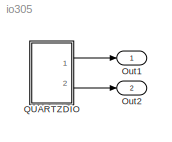
MODEL io305
KIND model
BLOCK [Outport] Out1
  IconDisplay = Port number
BLOCK [Outport] Out2
  IconDisplay = Port number
  Port = 2
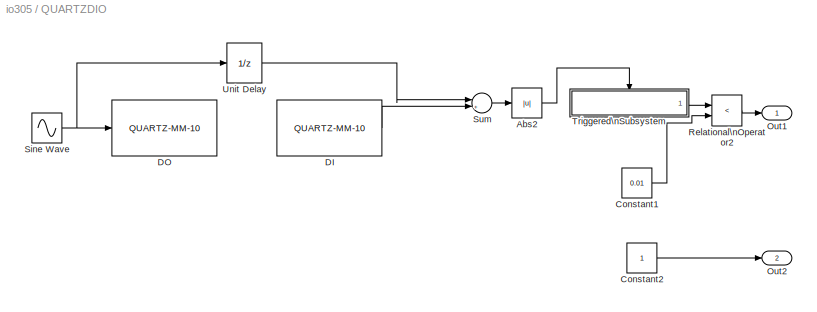
BLOCK [SubSystem] QUARTZDIO
  MinAlgLoopOccurrences = off
  Ports = [0, 2]
  PropExecContextAcrossSSBoundary = on
  RTWSystemCode = Auto
  TreatAsAtomicUnit = off
BLOCK [Abs] QUARTZDIO/Abs2
BLOCK [Constant] QUARTZDIO/Constant1
  Value = 0.01
BLOCK [Constant] QUARTZDIO/Constant2
BLOCK [Reference] QUARTZDIO/DI  REF=xpcdiamondlib/Digital\nInput/QUARTZ-MM-10 
  Ports = [0, 1]
  SourceBlock = xpcdiamondlib/Digital\nInput/QUARTZ-MM-10
  SourceType = didiamondquartz10
  baseAddressIn = 0x300
  channel = [1]
  ts = 0.001
BLOCK [Reference] QUARTZDIO/DO  REF=xpcdiamondlib/Digital\nOutput/QUARTZ-MM-10 
  Ports = [1]
  SourceBlock = xpcdiamondlib/Digital\nOutput/QUARTZ-MM-10
  SourceType = dodiamondquartz10
  baseAddressIn = 0x300
  channel = [3]
  ts = 0.001
BLOCK [Outport] QUARTZDIO/Out1
  IconDisplay = Port number
BLOCK [Outport] QUARTZDIO/Out2
  IconDisplay = Port number
  Port = 2
BLOCK [RelationalOperator] QUARTZDIO/Relational\nOperator2
  InputSameDT = off
  Operator = <
BLOCK [Sin] QUARTZDIO/Sine Wave
  Frequency = 5
  Ports = [0, 1]
  SampleTime = 0.001
  SineType = Time based
BLOCK [Sum] QUARTZDIO/Sum
  IconShape = round
  InputSameDT = off
  Inputs = |+-
  OutDataTypeMode = Inherit via internal rule
  Ports = [2, 1]
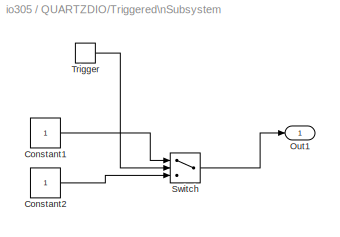
BLOCK [SubSystem] QUARTZDIO/Triggered\nSubsystem
  MinAlgLoopOccurrences = off
  Ports = [0, 1, 0, 1]
  PropExecContextAcrossSSBoundary = on
  RTWSystemCode = Auto
  TreatAsAtomicUnit = on
BLOCK [Constant] QUARTZDIO/Triggered\nSubsystem/Constant1
  OutDataTypeMode = double
BLOCK [Constant] QUARTZDIO/Triggered\nSubsystem/Constant2
  OutDataTypeMode = double
BLOCK [Outport] QUARTZDIO/Triggered\nSubsystem/Out1
  IconDisplay = Port number
BLOCK [Switch] QUARTZDIO/Triggered\nSubsystem/Switch
  Criteria = u2 ~= 0
  SaturateOnIntegerOverflow = off
BLOCK [TriggerPort] QUARTZDIO/Triggered\nSubsystem/Trigger
  Ports = [0, 1]
  ShowOutputPort = on
BLOCK [UnitDelay] QUARTZDIO/Unit Delay
  SampleTime = -1
LINE QUARTZDIO/Abs2:1 -> QUARTZDIO/Triggered\nSubsystem:trigger
LINE QUARTZDIO/Constant1:1 -> QUARTZDIO/Relational\nOperator2:2
LINE QUARTZDIO/Constant2:1 -> QUARTZDIO/Out2:1
LINE QUARTZDIO/DI:1 -> QUARTZDIO/Sum:2
LINE QUARTZDIO/Relational\nOperator2:1 -> QUARTZDIO/Out1:1
NET QUARTZDIO/Sine Wave:1 -> QUARTZDIO/DO:1, QUARTZDIO/Unit Delay:1
LINE QUARTZDIO/Sum:1 -> QUARTZDIO/Abs2:1
LINE QUARTZDIO/Triggered\nSubsystem/Constant1:1 -> QUARTZDIO/Triggered\nSubsystem/Switch:1
LINE QUARTZDIO/Triggered\nSubsystem/Constant2:1 -> QUARTZDIO/Triggered\nSubsystem/Switch:3
LINE QUARTZDIO/Triggered\nSubsystem/Switch:1 -> QUARTZDIO/Triggered\nSubsystem/Out1:1
LINE QUARTZDIO/Triggered\nSubsystem/Trigger:1 -> QUARTZDIO/Triggered\nSubsystem/Switch:2
LINE QUARTZDIO/Triggered\nSubsystem:1 -> QUARTZDIO/Relational\nOperator2:1
LINE QUARTZDIO/Unit Delay:1 -> QUARTZDIO/Sum:1
LINE QUARTZDIO:1 -> Out1:1
LINE QUARTZDIO:2 -> Out2:1
note: NET lines group one-source signal fan-out (src -> all destinations, sorted); 1:1 wires keep LINE
